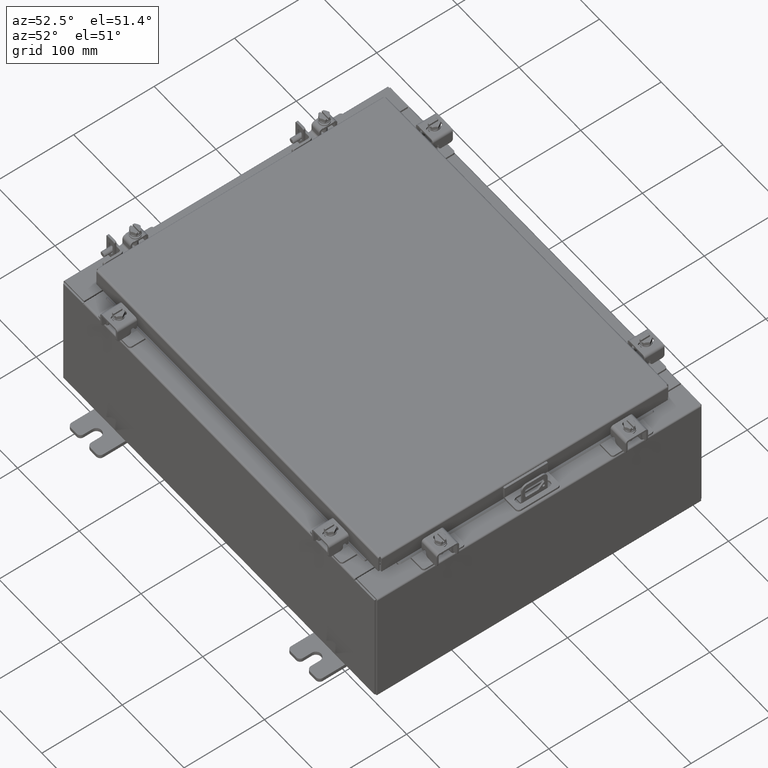
[diagram: clean part render]
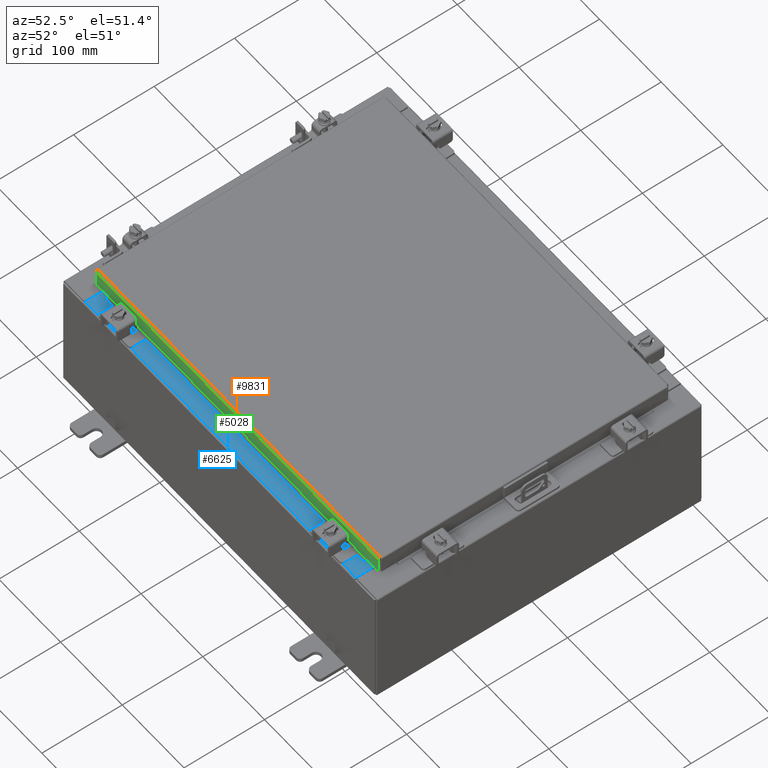
[diagram: same view with three faces highlighted in distinct colors, each labeled with its STEP entity id]
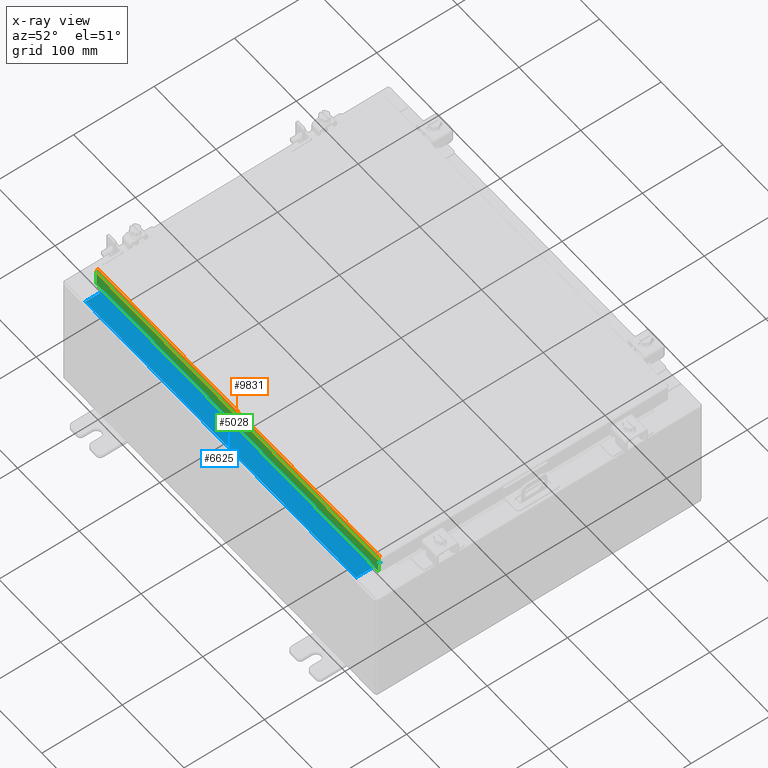
[diagram: x-ray of the same camera — body ghosted, the three highlighted faces saturated]
A machine part, auxiliary view with three faces highlighted in distinct colors.
The next image is the same camera in x-ray (body ghosted, the three faces saturated) — at least one of them is partly hidden behind the body in this view.
Their STEP definitions:

[orange] entity #9831 — the highlighted cylindrical surface (edge-blend (fillet) strip) has radius 2.2276 mm, axis along (-1, 0, 0).
#19 = EDGE_CURVE ( 'NONE', #6724, #1305, #5318, .T. ) ;
#139 = EDGE_CURVE ( 'NONE', #6724, #11593, #11214, .T. ) ;
#656 = EDGE_CURVE ( 'NONE', #12847, #11593, #9340, .T. ) ;
#1305 = VERTEX_POINT ( 'NONE', #3801 ) ;
#2416 = CARTESIAN_POINT ( 'NONE',  ( 8.989253042344916600, -7.094000000000000300, -0.07622009684500738500 ) ) ;
#2761 = ORIENTED_EDGE ( 'NONE', *, *, #15919, .F. ) ;
#3670 = CARTESIAN_POINT ( 'NONE',  ( 8.989348220313560800, -7.091717403743812700, -0.06474471054169121700 ) ) ;
#3719 = VECTOR ( 'NONE', #7487, 39.37007874015748100 ) ;
#3801 = CARTESIAN_POINT ( 'NONE',  ( -8.990299999999996000, -7.006300000000000400, -2.048885995248197400E-016 ) ) ;
#4669 = CARTESIAN_POINT ( 'NONE',  ( 8.990109644062714600, -7.029255289458311600, -0.002282596256188923400 ) ) ;
#5318 = B_SPLINE_CURVE_WITH_KNOTS ( 'NONE', 3,
 ( #10957, #10820, #10607, #11101, #11167, #11190, #11117, #11332, #11374, #11255 ),
 .UNSPECIFIED., .F., .F.,
 ( 4, 2, 2, 2, 4 ),
 ( 0.0000000000000000000, 0.2500000000000000000, 0.5000000000000000000, 0.7500000000000000000, 1.000000000000000000 ),
 .UNSPECIFIED. ) ;
#5579 = CARTESIAN_POINT ( 'NONE',  ( 8.989919288125424400, -7.050467384578525700, -0.01106893374133176100 ) ) ;
#5854 = CARTESIAN_POINT ( 'NONE',  ( -8.990299999999996000, -7.006300000000000400, -2.048885995248197400E-016 ) ) ;
#6463 = CARTESIAN_POINT ( 'NONE',  ( -8.990299999999996000, -7.006300000000000400, -0.08770000000000030500 ) ) ;
#6620 = EDGE_LOOP ( 'NONE', ( #2761, #18801, #8142, #14917 ) ) ;
#6724 = VERTEX_POINT ( 'NONE', #10166 ) ;
#7415 = CYLINDRICAL_SURFACE ( 'NONE', #12607, 0.08770000000000026400 ) ;
#7487 = DIRECTION ( 'NONE',  ( 1.000000000000000000, -0.0000000000000000000, -0.0000000000000000000 ) ) ;
#8075 = DIRECTION ( 'NONE',  ( -1.000000000000000000, 0.0000000000000000000, 0.0000000000000000000 ) ) ;
#8142 = ORIENTED_EDGE ( 'NONE', *, *, #139, .T. ) ;
#9300 = CARTESIAN_POINT ( 'NONE',  ( 8.990204822031358800, -7.017779903154994300, -2.037881236484656600E-016 ) ) ;
#9340 = B_SPLINE_CURVE_WITH_KNOTS ( 'NONE', 3,
 ( #14432, #9300, #4669, #5579, #13380, #13721, #18734, #3670, #2416, #12398 ),
 .UNSPECIFIED., .F., .F.,
 ( 4, 2, 2, 2, 4 ),
 ( 0.0000000000000000000, 0.2500000000000000000, 0.5000000000000000000, 0.7500000000000000000, 1.000000000000000000 ),
 .UNSPECIFIED. ) ;
#9831 = ADVANCED_FACE ( 'NONE', ( #20282 ), #7415, .T. ) ;
#10166 = CARTESIAN_POINT ( 'NONE',  ( -8.989157864376265300, -7.094000000000000300, -0.08770000000000007000 ) ) ;
#10607 = CARTESIAN_POINT ( 'NONE',  ( -8.989348220313553700, -7.091717403743812700, -0.06474471054169121700 ) ) ;
#10820 = CARTESIAN_POINT ( 'NONE',  ( -8.989253042344909500, -7.093999999999999400, -0.07622009684500735700 ) ) ;
#10957 = CARTESIAN_POINT ( 'NONE',  ( -8.989157864376265300, -7.094000000000000300, -0.08770000000000007000 ) ) ;
#11101 = CARTESIAN_POINT ( 'NONE',  ( -8.989538576250840400, -7.082931066258667300, -0.04353261542147222900 ) ) ;
#11117 = CARTESIAN_POINT ( 'NONE',  ( -8.989919288125419100, -7.050467384578529300, -0.01106893374133176100 ) ) ;
#11167 = CARTESIAN_POINT ( 'NONE',  ( -8.989633754219488200, -7.076430782078321400, -0.03380425265820009200 ) ) ;
#11190 = CARTESIAN_POINT ( 'NONE',  ( -8.989824110156774900, -7.060195747341798400, -0.01756921792167976500 ) ) ;
#11214 = LINE ( 'NONE', #18214, #19318 ) ;
#11255 = CARTESIAN_POINT ( 'NONE',  ( -8.990299999999996000, -7.006300000000000400, -2.048885995248197400E-016 ) ) ;
#11332 = CARTESIAN_POINT ( 'NONE',  ( -8.990109644062707500, -7.029255289458310700, -0.002282596256188923000 ) ) ;
#11374 = CARTESIAN_POINT ( 'NONE',  ( -8.990204822031351700, -7.017779903154993400, -2.038214714022946300E-016 ) ) ;
#11593 = VERTEX_POINT ( 'NONE', #15047 ) ;
#12346 = LINE ( 'NONE', #5854, #3719 ) ;
#12398 = CARTESIAN_POINT ( 'NONE',  ( 8.989157864376272400, -7.094000000000000300, -0.08770000000000007000 ) ) ;
#12607 = AXIS2_PLACEMENT_3D ( 'NONE', #6463, #8075, #14527 ) ;
#12847 = VERTEX_POINT ( 'NONE', #19862 ) ;
#13380 = CARTESIAN_POINT ( 'NONE',  ( 8.989824110156782000, -7.060195747341800200, -0.01756921792167976500 ) ) ;
#13721 = CARTESIAN_POINT ( 'NONE',  ( 8.989633754219493500, -7.076430782078319700, -0.03380425265820009900 ) ) ;
#14432 = CARTESIAN_POINT ( 'NONE',  ( 8.990300000000003100, -7.006300000000000400, -2.048885995248197400E-016 ) ) ;
#14527 = DIRECTION ( 'NONE',  ( 0.0000000000000000000, -1.000000000000000000, 2.725618009642215600E-015 ) ) ;
#14917 = ORIENTED_EDGE ( 'NONE', *, *, #656, .F. ) ;
#15047 = CARTESIAN_POINT ( 'NONE',  ( 8.989157864376272400, -7.094000000000000300, -0.08770000000000007000 ) ) ;
#15919 = EDGE_CURVE ( 'NONE', #1305, #12847, #12346, .T. ) ;
#17537 = DIRECTION ( 'NONE',  ( 1.000000000000000000, 3.393150142274113600E-031, -9.248938716548949800E-046 ) ) ;
#18214 = CARTESIAN_POINT ( 'NONE',  ( 9.078000000000003000, -7.094000000000000300, -0.08770000000000007000 ) ) ;
#18734 = CARTESIAN_POINT ( 'NONE',  ( 8.989538576250847500, -7.082931066258669100, -0.04353261542147223600 ) ) ;
#18801 = ORIENTED_EDGE ( 'NONE', *, *, #19, .F. ) ;
#19318 = VECTOR ( 'NONE', #17537, 39.37007874015748100 ) ;
#19862 = CARTESIAN_POINT ( 'NONE',  ( 8.990300000000003100, -7.006300000000000400, -2.048885995248197400E-016 ) ) ;
#20282 = FACE_OUTER_BOUND ( 'NONE', #6620, .T. ) ;

[blue] entity #6625 — the highlighted planar face has unit normal (-0, -0, 1).
#886 = LINE ( 'NONE', #18558, #8921 ) ;
#1324 = CARTESIAN_POINT ( 'NONE',  ( -8.637200000000000000, -0.07469999999999973900, 3.000000000000000900 ) ) ;
#2016 = DIRECTION ( 'NONE',  ( 0.0000000000000000000, 3.566381192773190000E-015, 1.000000000000000000 ) ) ;
#2909 = DIRECTION ( 'NONE',  ( -0.0000000000000000000, 1.000000000000000000, -3.566381192773190000E-015 ) ) ;
#3262 = CARTESIAN_POINT ( 'NONE',  ( 8.637200000000000000, -1.287299999999999900, 3.000000000000005300 ) ) ;
#3540 = PLANE ( 'NONE',  #9802 ) ;
#3914 = ORIENTED_EDGE ( 'NONE', *, *, #5121, .F. ) ;
#4588 = EDGE_CURVE ( 'NONE', #14712, #6313, #15265, .T. ) ;
#4644 = DIRECTION ( 'NONE',  ( -1.000000000000000000, 3.162886113166609200E-017, -1.128005754888089100E-031 ) ) ;
#4734 = EDGE_CURVE ( 'NONE', #13313, #5455, #13244, .T. ) ;
#5107 = CARTESIAN_POINT ( 'NONE',  ( 0.0000000000000000000, 1.069354855923099900E-014, 3.000000000000000900 ) ) ;
#5121 = EDGE_CURVE ( 'NONE', #5455, #6313, #16569, .T. ) ;
#5455 = VERTEX_POINT ( 'NONE', #15572 ) ;
#6265 = ORIENTED_EDGE ( 'NONE', *, *, #4588, .T. ) ;
#6313 = VERTEX_POINT ( 'NONE', #14621 ) ;
#6625 = ADVANCED_FACE ( 'NONE', ( #13746 ), #3540, .T. ) ;
#7333 = DIRECTION ( 'NONE',  ( -0.0000000000000000000, -1.000000000000000000, 3.566381192773190000E-015 ) ) ;
#7969 = VECTOR ( 'NONE', #2909, 39.37007874015748100 ) ;
#8149 = DIRECTION ( 'NONE',  ( -1.000000000000000000, 0.0000000000000000000, 0.0000000000000000000 ) ) ;
#8465 = ORIENTED_EDGE ( 'NONE', *, *, #4734, .F. ) ;
#8918 = VECTOR ( 'NONE', #8149, 39.37007874015748100 ) ;
#8921 = VECTOR ( 'NONE', #7333, 39.37007874015748100 ) ;
#9802 = AXIS2_PLACEMENT_3D ( 'NONE', #5107, #2016, #13330 ) ;
#13244 = LINE ( 'NONE', #3262, #8918 ) ;
#13313 = VERTEX_POINT ( 'NONE', #16459 ) ;
#13330 = DIRECTION ( 'NONE',  ( 0.0000000000000000000, -1.000000000000000000, 3.566381192773190000E-015 ) ) ;
#13746 = FACE_OUTER_BOUND ( 'NONE', #14976, .T. ) ;
#14621 = CARTESIAN_POINT ( 'NONE',  ( -8.637200000000000000, -0.08770000000000000000, 3.000000000000000900 ) ) ;
#14712 = VERTEX_POINT ( 'NONE', #19404 ) ;
#14757 = VECTOR ( 'NONE', #4644, 39.37007874015748100 ) ;
#14976 = EDGE_LOOP ( 'NONE', ( #3914, #8465, #19614, #6265 ) ) ;
#15265 = LINE ( 'NONE', #15942, #14757 ) ;
#15572 = CARTESIAN_POINT ( 'NONE',  ( -8.637200000000000000, -1.287299999999999200, 3.000000000000005300 ) ) ;
#15942 = CARTESIAN_POINT ( 'NONE',  ( -2.773851121247453900E-018, -0.08770000000000000000, 3.000000000000001300 ) ) ;
#16459 = CARTESIAN_POINT ( 'NONE',  ( 8.637200000000000000, -1.287299999999999900, 3.000000000000005300 ) ) ;
#16569 = LINE ( 'NONE', #1324, #7969 ) ;
#18558 = CARTESIAN_POINT ( 'NONE',  ( 8.637200000000000000, -1.300299999999999800, 3.000000000000005300 ) ) ;
#19404 = CARTESIAN_POINT ( 'NONE',  ( 8.637200000000000000, -0.08769999999999965300, 3.000000000000000900 ) ) ;
#19563 = EDGE_CURVE ( 'NONE', #14712, #13313, #886, .T. ) ;
#19614 = ORIENTED_EDGE ( 'NONE', *, *, #19563, .F. ) ;

[green] entity #5028 — the highlighted planar face has unit normal (-0, 1, -0).
#139 = EDGE_CURVE ( 'NONE', #6724, #11593, #11214, .T. ) ;
#350 = EDGE_CURVE ( 'NONE', #11593, #19751, #16272, .T. ) ;
#479 = DIRECTION ( 'NONE',  ( -1.000000000000000000, 0.0000000000000000000, 0.0000000000000000000 ) ) ;
#791 = EDGE_CURVE ( 'NONE', #1476, #12832, #13787, .T. ) ;
#1410 = LINE ( 'NONE', #10440, #18588 ) ;
#1476 = VERTEX_POINT ( 'NONE', #15462 ) ;
#1871 = LINE ( 'NONE', #15223, #14276 ) ;
#3054 = LINE ( 'NONE', #16610, #6369 ) ;
#3606 = EDGE_CURVE ( 'NONE', #19751, #1476, #1410, .T. ) ;
#3673 = DIRECTION ( 'NONE',  ( -1.000000000000000000, -0.0000000000000000000, 1.203722403024570700E-016 ) ) ;
#3897 = VECTOR ( 'NONE', #7366, 39.37007874015748100 ) ;
#5028 = ADVANCED_FACE ( 'NONE', ( #18597 ), #15518, .F. ) ;
#5839 = CARTESIAN_POINT ( 'NONE',  ( 2.407100710929255400E-030, -7.094000000000000300, 2.025795506403870800E-014 ) ) ;
#6029 = AXIS2_PLACEMENT_3D ( 'NONE', #5839, #17145, #7467 ) ;
#6369 = VECTOR ( 'NONE', #3673, 39.37007874015748100 ) ;
#6724 = VERTEX_POINT ( 'NONE', #10166 ) ;
#7322 = EDGE_CURVE ( 'NONE', #12832, #8378, #3054, .T. ) ;
#7366 = DIRECTION ( 'NONE',  ( -0.0000000000000000000, -2.818880942772360100E-015, -1.000000000000000000 ) ) ;
#7467 = DIRECTION ( 'NONE',  ( 0.0000000000000000000, 2.818880942772360100E-015, 1.000000000000000000 ) ) ;
#7842 = EDGE_LOOP ( 'NONE', ( #16826, #13154, #20543, #18013, #12402, #11522 ) ) ;
#8378 = VERTEX_POINT ( 'NONE', #18212 ) ;
#8472 = CARTESIAN_POINT ( 'NONE',  ( -8.239157864376263500, -7.093999999999995000, -0.8500000000000006400 ) ) ;
#8968 = CARTESIAN_POINT ( 'NONE',  ( 8.239157864376272400, -7.093999999999995000, -0.8500000000000006400 ) ) ;
#9168 = EDGE_CURVE ( 'NONE', #6724, #8378, #1871, .T. ) ;
#9937 = VECTOR ( 'NONE', #479, 39.37007874015748100 ) ;
#10166 = CARTESIAN_POINT ( 'NONE',  ( -8.989157864376265300, -7.094000000000000300, -0.08770000000000007000 ) ) ;
#10391 = DIRECTION ( 'NONE',  ( 0.0000000000000000000, -2.818880942772360100E-015, -1.000000000000000000 ) ) ;
#10440 = CARTESIAN_POINT ( 'NONE',  ( 9.078000000000003000, -7.094000000000002100, -0.8499999999999996400 ) ) ;
#11214 = LINE ( 'NONE', #18214, #19318 ) ;
#11522 = ORIENTED_EDGE ( 'NONE', *, *, #350, .F. ) ;
#11593 = VERTEX_POINT ( 'NONE', #15047 ) ;
#12402 = ORIENTED_EDGE ( 'NONE', *, *, #3606, .F. ) ;
#12832 = VERTEX_POINT ( 'NONE', #8472 ) ;
#12918 = CARTESIAN_POINT ( 'NONE',  ( 8.989157864376272400, -7.094000000000002100, -0.8499999999999996400 ) ) ;
#13154 = ORIENTED_EDGE ( 'NONE', *, *, #9168, .T. ) ;
#13787 = LINE ( 'NONE', #8968, #9937 ) ;
#14276 = VECTOR ( 'NONE', #10391, 39.37007874015748100 ) ;
#14996 = CARTESIAN_POINT ( 'NONE',  ( 8.989157864376272400, -7.094000000000000300, -0.07469999999999978000 ) ) ;
#15047 = CARTESIAN_POINT ( 'NONE',  ( 8.989157864376272400, -7.094000000000000300, -0.08770000000000007000 ) ) ;
#15223 = CARTESIAN_POINT ( 'NONE',  ( -8.989157864376265300, -7.094000000000000300, 2.025795506403870800E-014 ) ) ;
#15462 = CARTESIAN_POINT ( 'NONE',  ( 8.239157864376272400, -7.093999999999995000, -0.8500000000000006400 ) ) ;
#15518 = PLANE ( 'NONE',  #6029 ) ;
#16272 = LINE ( 'NONE', #14996, #3897 ) ;
#16610 = CARTESIAN_POINT ( 'NONE',  ( 9.078000000000003000, -7.094000000000002100, -0.8499999999999996400 ) ) ;
#16826 = ORIENTED_EDGE ( 'NONE', *, *, #139, .F. ) ;
#17145 = DIRECTION ( 'NONE',  ( -3.393150142274112700E-031, 1.000000000000000000, -2.818880942772360100E-015 ) ) ;
#17537 = DIRECTION ( 'NONE',  ( 1.000000000000000000, 3.393150142274113600E-031, -9.248938716548949800E-046 ) ) ;
#18013 = ORIENTED_EDGE ( 'NONE', *, *, #791, .F. ) ;
#18212 = CARTESIAN_POINT ( 'NONE',  ( -8.989157864376265300, -7.094000000000002100, -0.8499999999999975400 ) ) ;
#18214 = CARTESIAN_POINT ( 'NONE',  ( 9.078000000000003000, -7.094000000000000300, -0.08770000000000007000 ) ) ;
#18588 = VECTOR ( 'NONE', #20141, 39.37007874015748100 ) ;
#18597 = FACE_OUTER_BOUND ( 'NONE', #7842, .T. ) ;
#19318 = VECTOR ( 'NONE', #17537, 39.37007874015748100 ) ;
#19751 = VERTEX_POINT ( 'NONE', #12918 ) ;
#20141 = DIRECTION ( 'NONE',  ( -1.000000000000000000, -0.0000000000000000000, 1.203722403024570700E-016 ) ) ;
#20543 = ORIENTED_EDGE ( 'NONE', *, *, #7322, .F. ) ;